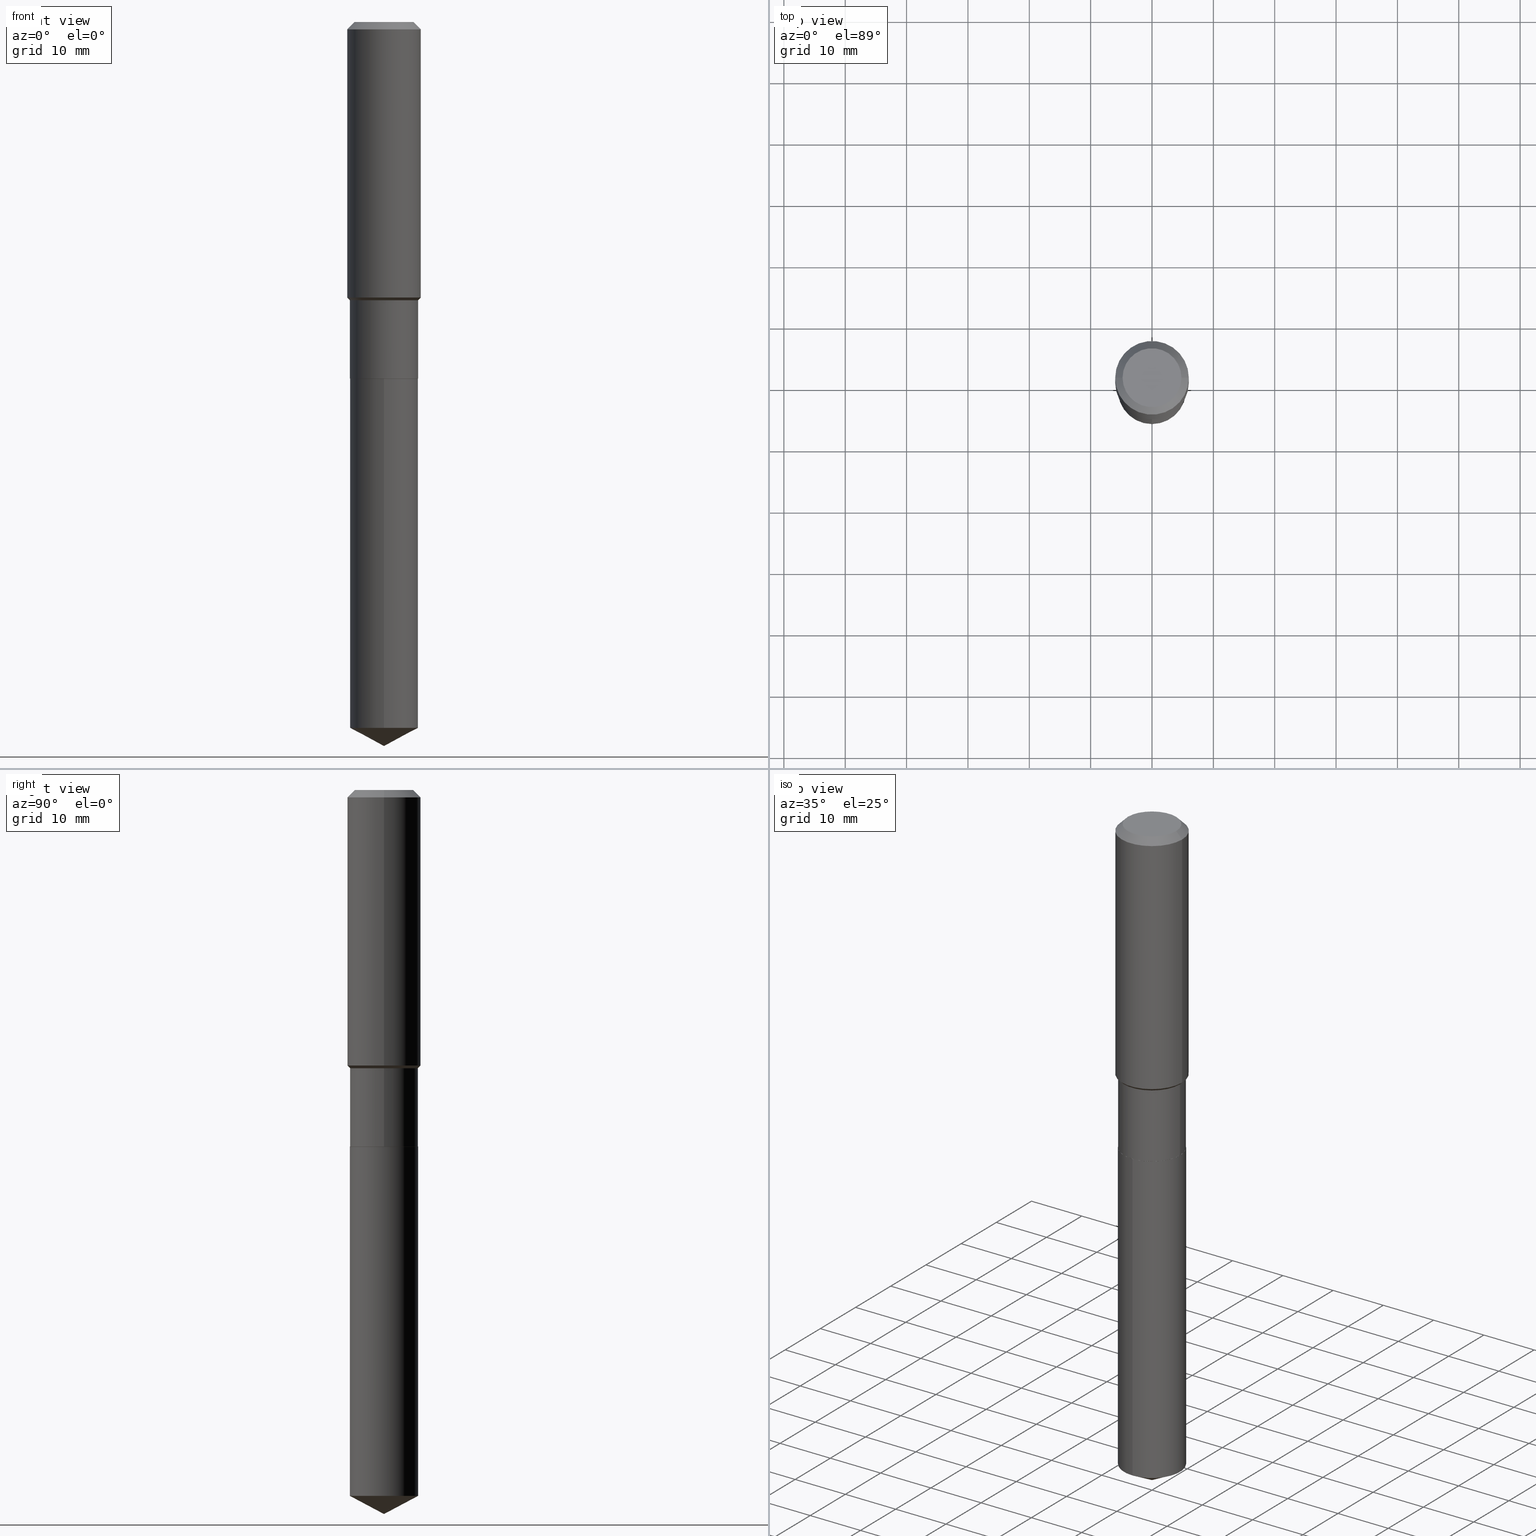
[diagram: canonical four-view strip — front | top / right | iso, engineering-drawing reading convention]
A machine part, canonical four-view strip (front | top / right | iso — engineering-drawing reading convention). The complete STEP part file that produces these views, byte-faithful:
ISO-10303-21;
HEADER;
FILE_DESCRIPTION (( 'STEP AP203' ),
    '1' );
FILE_NAME ('54825.STEP',
    '2024-04-24T16:01:53',
    ( '' ),
    ( '' ),
    'SwSTEP 2.0',
    'SolidWorks 2023',
    '' );
FILE_SCHEMA (( 'CONFIG_CONTROL_DESIGN' ));
ENDSEC;

DATA;
#1 = CARTESIAN_POINT ( 'NONE',  ( 1.136187168317618244E-28, -1.622110482110581493E-14, -4.645999999999999908 ) ) ;
#2 = ORIENTED_EDGE ( 'NONE', *, *, #13, .F. ) ;
#3 = EDGE_CURVE ( 'NONE', #397, #275, #413, .T. ) ;
#4 = DIRECTION ( 'NONE',  ( -6.982962677686265922E-15, -1.000000000000000000, 3.541896320645558897E-15 ) ) ;
#5 = PRODUCT_DEFINITION_FORMATION_WITH_SPECIFIED_SOURCE ( 'ANY', '', #87, .NOT_KNOWN. ) ;
#6 = CIRCLE ( 'NONE', #237, 0.2187499999999999167 ) ;
#7 = DIRECTION ( 'NONE',  ( -6.982962677686265133E-15, -1.000000000000000000, 2.497689594207326371E-15 ) ) ;
#8 = ORIENTED_EDGE ( 'NONE', *, *, #150, .T. ) ;
#9 = PERSON_AND_ORGANIZATION ( #203, #264 ) ;
#10 = DIRECTION ( 'NONE',  ( 1.000000000000000000, -6.982962677686262766E-15, 0.000000000000000000 ) ) ;
#11 = ORIENTED_EDGE ( 'NONE', *, *, #159, .F. ) ;
#12 = DIRECTION ( 'NONE',  ( -0.7071067811864267805, 7.493145998869918709E-15, 0.7071067811866682540 ) ) ;
#13 = EDGE_CURVE ( 'NONE', #204, #357, #67, .T. ) ;
#14 = ORIENTED_EDGE ( 'NONE', *, *, #36, .F. ) ;
#15 = VECTOR ( 'NONE', #461, 39.37007874015748143 ) ;
#16 = CARTESIAN_POINT ( 'NONE',  ( 5.596455362954686241E-29, -7.990255043942539745E-15, -2.288500000000000423 ) ) ;
#17 = ORIENTED_EDGE ( 'NONE', *, *, #343, .F. ) ;
#18 = DIRECTION ( 'NONE',  ( 2.445516523471432207E-29, -3.491413004973270552E-15, -1.000000000000000000 ) ) ;
#19 = ORIENTED_EDGE ( 'NONE', *, *, #456, .T. ) ;
#20 = APPROVAL ( #25, 'UNSPECIFIED' ) ;
#21 = EDGE_LOOP ( 'NONE', ( #48, #471, #53, #42 ) ) ;
#22 = CONICAL_SURFACE ( 'NONE', #437, 0.2182499999999999996, 0.7853981633972775267 ) ;
#23 = CIRCLE ( 'NONE', #282, 0.2362000000000002153 ) ;
#24 = CARTESIAN_POINT ( 'NONE',  ( 1.107731902311058001E-28, -1.581516993529237570E-14, -4.529688561824052329 ) ) ;
#25 = APPROVAL_STATUS ( 'not_yet_approved' ) ;
#26 = DIRECTION ( 'NONE',  ( -2.445516523471432488E-29, 3.491413004973270552E-15, 1.000000000000000000 ) ) ;
#27 = CARTESIAN_POINT ( 'NONE',  ( 5.596455362954686241E-29, -7.990255043942539745E-15, -2.288499999999999979 ) ) ;
#28 = EDGE_CURVE ( 'NONE', #239, #141, #420, .T. ) ;
#29 = AXIS2_PLACEMENT_3D ( 'NONE', #88, #34, #487 ) ;
#30 = DIRECTION ( 'NONE',  ( 1.000000000000000000, -6.982962677686266711E-15, 4.876176775795935793E-29 ) ) ;
#31 = VECTOR ( 'NONE', #190, 39.37007874015748143 ) ;
#32 = LINE ( 'NONE', #410, #314 ) ;
#33 = PERSON_AND_ORGANIZATION_ROLE ( 'design_supplier' ) ;
#34 = DIRECTION ( 'NONE',  ( -2.445516523471432488E-29, 3.491413004973270552E-15, 1.000000000000000000 ) ) ;
#35 = FACE_OUTER_BOUND ( 'NONE', #274, .T. ) ;
#36 = EDGE_CURVE ( 'NONE', #210, #397, #433, .T. ) ;
#37 = CARTESIAN_POINT ( 'NONE',  ( 4.366140006562942909E-29, -6.233690782370552646E-15, -1.785400000000000098 ) ) ;
#38 = ORIENTED_EDGE ( 'NONE', *, *, #13, .T. ) ;
#39 = DIRECTION ( 'NONE',  ( 1.000000000000000000, -6.982962677686266711E-15, 4.876176775795935793E-29 ) ) ;
#40 = CARTESIAN_POINT ( 'NONE',  ( 0.2182499999999999996, -9.514286648347568370E-15, -2.288500000000000423 ) ) ;
#41 = CIRCLE ( 'NONE', #465, 0.2187500000000000000 ) ;
#42 = ORIENTED_EDGE ( 'NONE', *, *, #456, .F. ) ;
#43 = FACE_OUTER_BOUND ( 'NONE', #352, .T. ) ;
#44 = CARTESIAN_POINT ( 'NONE',  ( 0.2187500000000000000, -9.516032389016987507E-15, -2.288000000000000256 ) ) ;
#45 = ADVANCED_FACE ( 'NONE', ( #212 ), #214, .T. ) ;
#46 =( NAMED_UNIT ( * ) SI_UNIT ( $, .STERADIAN. ) SOLID_ANGLE_UNIT ( ) );
#47 = DIRECTION ( 'NONE',  ( -2.445516523471432488E-29, 3.491413004973270552E-15, 1.000000000000000000 ) ) ;
#48 = ORIENTED_EDGE ( 'NONE', *, *, #77, .T. ) ;
#49 = CARTESIAN_POINT ( 'NONE',  ( 4.366140006562942909E-29, -6.233690782370552646E-15, -1.785400000000000098 ) ) ;
#50 = ORIENTED_EDGE ( 'NONE', *, *, #36, .T. ) ;
#51 = APPROVAL_DATE_TIME ( #345, #280 ) ;
#52 = DIRECTION ( 'NONE',  ( 1.000000000000000000, -6.982962677686266711E-15, 0.000000000000000000 ) ) ;
#53 = ORIENTED_EDGE ( 'NONE', *, *, #355, .F. ) ;
#54 = DATE_TIME_ROLE ( 'creation_date' ) ;
#55 = ADVANCED_FACE ( 'NONE', ( #148 ), #216, .T. ) ;
#56 = DIRECTION ( 'NONE',  ( -2.445468806185136597E-29, 3.491481338843145583E-15, 1.000000000000000000 ) ) ;
#57 = ORIENTED_EDGE ( 'NONE', *, *, #226, .F. ) ;
#58 = DIRECTION ( 'NONE',  ( 6.982962677686265922E-15, 1.000000000000000000, -3.491413004973270552E-15 ) ) ;
#59 = VERTEX_POINT ( 'NONE', #371 ) ;
#60 = CC_DESIGN_APPROVAL ( #144, ( #312 ) ) ;
#61 = AXIS2_PLACEMENT_3D ( 'NONE', #368, #143, #72 ) ;
#62 = AXIS2_PLACEMENT_3D ( 'NONE', #236, #384, #52 ) ;
#63 = ORIENTED_EDGE ( 'NONE', *, *, #296, .T. ) ;
#64 = ADVANCED_FACE ( 'NONE', ( #326 ), #286, .T. ) ;
#65 = ORIENTED_EDGE ( 'NONE', *, *, #351, .T. ) ;
#66 = ORIENTED_EDGE ( 'NONE', *, *, #355, .T. ) ;
#67 = CIRCLE ( 'NONE', #464, 0.1889600000000000168 ) ;
#68 = VECTOR ( 'NONE', #82, 39.37007874015748143 ) ;
#69 = ORIENTED_EDGE ( 'NONE', *, *, #211, .T. ) ;
#70 = CC_DESIGN_PERSON_AND_ORGANIZATION_ASSIGNMENT ( #334, #33, ( #5 ) ) ;
#71 = ORIENTED_EDGE ( 'NONE', *, *, #258, .F. ) ;
#72 = DIRECTION ( 'NONE',  ( 1.000000000000000000, -6.982962677686265922E-15, 0.000000000000000000 ) ) ;
#73 = CLOSED_SHELL ( 'NONE', ( #253, #131, #164, #45, #359 ) ) ;
#74 = CARTESIAN_POINT ( 'NONE',  ( 3.596165584200037068E-29, -1.085478385654307518E-14, -2.288500000000000423 ) ) ;
#75 = AXIS2_PLACEMENT_3D ( 'NONE', #430, #360, #168 ) ;
#76 = CARTESIAN_POINT ( 'NONE',  ( 0.2361999999999999933, -1.785387205520586782E-15, -0.04724000000000027483 ) ) ;
#77 = EDGE_CURVE ( 'NONE', #362, #91, #472, .T. ) ;
#78 = DIRECTION ( 'NONE',  ( 1.000000000000000000, -6.982962677686265922E-15, 0.000000000000000000 ) ) ;
#79 = ORIENTED_EDGE ( 'NONE', *, *, #333, .T. ) ;
#80 =( NAMED_UNIT ( * ) PLANE_ANGLE_UNIT ( ) SI_UNIT ( $, .RADIAN. ) );
#81 = DIRECTION ( 'NONE',  ( 2.438088387897960049E-29, -3.491481338843145188E-15, -1.000000000000000000 ) ) ;
#82 = DIRECTION ( 'NONE',  ( -0.7071067811865453523, 2.468850131082234184E-15, -0.7071067811865496822 ) ) ;
#83 = CARTESIAN_POINT ( 'NONE',  ( 1.155239464041865331E-30, -1.649375784469511612E-16, -0.04724000000000027483 ) ) ;
#84 = CONICAL_SURFACE ( 'NONE', #185, 74.04434902938358221, 1.082104136236486713 ) ;
#85 = AXIS2_PLACEMENT_3D ( 'NONE', #157, #332, #115 ) ;
#86 = LINE ( 'NONE', #195, #370 ) ;
#87 = PRODUCT ( '54825', '54825', '', ( #444 ) ) ;
#88 = CARTESIAN_POINT ( 'NONE',  ( 5.596455362954686241E-29, -7.990255043942539745E-15, -2.288499999999999979 ) ) ;
#89 = CARTESIAN_POINT ( 'NONE',  ( 0.1889600000000000168, -1.540873453589747738E-15, 3.855188123725863225E-18 ) ) ;
#90 = MANIFOLD_SOLID_BREP ( 'Body-Move/Copy2[1]', #73 ) ;
#91 = VERTEX_POINT ( 'NONE', #440 ) ;
#92 = AXIS2_PLACEMENT_3D ( 'NONE', #244, #424, #7 ) ;
#93 = ADVANCED_FACE ( 'NONE', ( #285 ), #22, .T. ) ;
#94 = ORIENTED_EDGE ( 'NONE', *, *, #289, .T. ) ;
#95 = APPROVAL_STATUS ( 'not_yet_approved' ) ;
#96 = CARTESIAN_POINT ( 'NONE',  ( 5.596455362954686241E-29, -7.990255043942539745E-15, -2.288499999999999979 ) ) ;
#97 = VERTEX_POINT ( 'NONE', #111 ) ;
#98 = DATE_AND_TIME ( #386, #431 ) ;
#99 = PLANE ( 'NONE',  #135 ) ;
#100 = ADVANCED_FACE ( 'NONE', ( #254 ), #170, .T. ) ;
#101 = ORIENTED_EDGE ( 'NONE', *, *, #28, .T. ) ;
#102 = LOCAL_TIME ( 12, 1, 53.00000000000000000, #145 ) ;
#103 = VECTOR ( 'NONE', #380, 39.37007874015748143 ) ;
#104 = DIRECTION ( 'NONE',  ( 1.000000000000000000, -6.982962677686264344E-15, 0.000000000000000000 ) ) ;
#105 = EDGE_LOOP ( 'NONE', ( #367, #17, #281, #385 ) ) ;
#106 = ORIENTED_EDGE ( 'NONE', *, *, #77, .F. ) ;
#107 = DIRECTION ( 'NONE',  ( -2.445468806185136597E-29, 3.491481338843145583E-15, 1.000000000000000000 ) ) ;
#108 = ADVANCED_FACE ( 'NONE', ( #255 ), #402, .F. ) ;
#109 = DATE_AND_TIME ( #215, #102 ) ;
#110 = ORIENTED_EDGE ( 'NONE', *, *, #138, .F. ) ;
#111 = CARTESIAN_POINT ( 'NONE',  ( 1.136186976804827439E-28, -1.622110482110581493E-14, -4.645999999999999908 ) ) ;
#112 = CARTESIAN_POINT ( 'NONE',  ( 1.136165136602890058E-28, -1.622141758522823527E-14, -4.645999999999999908 ) ) ;
#113 = DIRECTION ( 'NONE',  ( 1.000000000000000000, -6.982962677686264344E-15, 0.000000000000000000 ) ) ;
#114 = PRODUCT_RELATED_PRODUCT_CATEGORY ( 'detail', '', ( #87 ) ) ;
#115 = DIRECTION ( 'NONE',  ( 1.000000000000000000, 0.000000000000000000, 0.000000000000000000 ) ) ;
#116 = CARTESIAN_POINT ( 'NONE',  ( 5.596455362954686241E-29, -7.990255043942539745E-15, -2.288499999999999979 ) ) ;
#117 = CYLINDRICAL_SURFACE ( 'NONE', #398, 0.2187499999999999445 ) ;
#118 = DIRECTION ( 'NONE',  ( -2.445468806185136597E-29, 3.491481338843145583E-15, 1.000000000000000000 ) ) ;
#119 = DIRECTION ( 'NONE',  ( -2.445468806185136597E-29, 3.491481338843145583E-15, 1.000000000000000000 ) ) ;
#120 = DIRECTION ( 'NONE',  ( -2.445516523471432488E-29, 3.491413004973270552E-15, 1.000000000000000000 ) ) ;
#121 = ORIENTED_EDGE ( 'NONE', *, *, #123, .F. ) ;
#122 = CARTESIAN_POINT ( 'NONE',  ( -0.2187500000000000000, -5.556787808346616681E-15, -2.288000000000000256 ) ) ;
#123 = EDGE_CURVE ( 'NONE', #97, #91, #197, .T. ) ;
#124 = AXIS2_PLACEMENT_3D ( 'NONE', #83, #125, #342 ) ;
#125 = DIRECTION ( 'NONE',  ( 2.445468806185136597E-29, -3.491481338843145583E-15, -1.000000000000000000 ) ) ;
#126 = AXIS2_PLACEMENT_3D ( 'NONE', #394, #107, #30 ) ;
#127 = APPROVAL_ROLE ( '' ) ;
#128 = CARTESIAN_POINT ( 'NONE',  ( 4.366140006562942909E-29, -6.233690782370552646E-15, -1.785400000000000098 ) ) ;
#129 = EDGE_LOOP ( 'NONE', ( #249, #477, #69, #418 ) ) ;
#130 = CALENDAR_DATE ( 2024, 24, 4 ) ;
#131 = ADVANCED_FACE ( 'NONE', ( #267 ), #84, .T. ) ;
#132 = ORIENTED_EDGE ( 'NONE', *, *, #232, .F. ) ;
#133 = DIRECTION ( 'NONE',  ( -2.445468806185136597E-29, 3.491481338843145583E-15, 1.000000000000000000 ) ) ;
#134 = EDGE_LOOP ( 'NONE', ( #474, #460, #106 ) ) ;
#135 = AXIS2_PLACEMENT_3D ( 'NONE', #96, #18, #58 ) ;
#136 = FACE_OUTER_BOUND ( 'NONE', #176, .T. ) ;
#137 = ORIENTED_EDGE ( 'NONE', *, *, #343, .T. ) ;
#138 = EDGE_CURVE ( 'NONE', #59, #389, #287, .T. ) ;
#139 = ORIENTED_EDGE ( 'NONE', *, *, #434, .F. ) ;
#140 = EDGE_LOOP ( 'NONE', ( #121, #393, #207 ) ) ;
#141 = VERTEX_POINT ( 'NONE', #230 ) ;
#142 = DATE_AND_TIME ( #475, #486 ) ;
#143 = DIRECTION ( 'NONE',  ( -2.445468806185136597E-29, 3.491481338843145583E-15, 1.000000000000000000 ) ) ;
#144 = APPROVAL ( #270, 'UNSPECIFIED' ) ;
#145 = COORDINATED_UNIVERSAL_TIME_OFFSET ( 5, 0, .BEHIND. ) ;
#146 = CARTESIAN_POINT ( 'NONE',  ( 0.000000000000000000, 0.000000000000000000, 0.000000000000000000 ) ) ;
#147 = CONICAL_SURFACE ( 'NONE', #298, 0.2187499999999999167, 0.7853981633974531640 ) ;
#148 = FACE_OUTER_BOUND ( 'NONE', #242, .T. ) ;
#149 = CARTESIAN_POINT ( 'NONE',  ( 0.2187499999999999167, -7.761213868114422700E-15, -1.785400000000000098 ) ) ;
#150 = EDGE_CURVE ( 'NONE', #432, #218, #321, .T. ) ;
#151 = DIRECTION ( 'NONE',  ( -2.445468806185136597E-29, 3.491481338843145583E-15, 1.000000000000000000 ) ) ;
#152 = SECURITY_CLASSIFICATION_LEVEL ( 'unclassified' ) ;
#153 = DIRECTION ( 'NONE',  ( 1.000000000000000000, -6.982962677686265922E-15, 4.876176775795935793E-29 ) ) ;
#154 = CARTESIAN_POINT ( 'NONE',  ( -1.527523085743814439E-15, -0.2187500000000079659, -2.288499999999999535 ) ) ;
#155 = CONICAL_SURFACE ( 'NONE', #177, 0.2361999999999999933, 0.7853981633974452814 ) ;
#156 = CARTESIAN_POINT ( 'NONE',  ( 1.155239464041865331E-30, -1.649375784469511612E-16, -0.04724000000000027483 ) ) ;
#157 = CARTESIAN_POINT ( 'NONE',  ( 0.000000000000000000, 0.000000000000000000, 0.000000000000000000 ) ) ;
#158 = DIRECTION ( 'NONE',  ( -6.982962677686265922E-15, -1.000000000000000000, 3.541896320645558897E-15 ) ) ;
#159 = EDGE_CURVE ( 'NONE', #224, #141, #373, .T. ) ;
#160 = CARTESIAN_POINT ( 'NONE',  ( -0.2182499999999999996, -6.436846295972010286E-15, -2.288500000000000423 ) ) ;
#161 = COORDINATED_UNIVERSAL_TIME_OFFSET ( 5, 0, .BEHIND. ) ;
#162 = CARTESIAN_POINT ( 'NONE',  ( -0.2362000000000001043, 1.678301941865357380E-15, -1.161852468318209317E-29 ) ) ;
#163 = APPROVAL_PERSON_ORGANIZATION ( #349, #144, #417 ) ;
#164 = ADVANCED_FACE ( 'NONE', ( #223 ), #220, .T. ) ;
#165 = FACE_OUTER_BOUND ( 'NONE', #169, .T. ) ;
#166 = PRODUCT_DEFINITION_SHAPE ( 'NONE', 'NONE',  #312 ) ;
#167 = ORIENTED_EDGE ( 'NONE', *, *, #28, .F. ) ;
#168 = DIRECTION ( 'NONE',  ( -6.982962677686265133E-15, -1.000000000000000000, 3.746534391310989557E-15 ) ) ;
#169 = EDGE_LOOP ( 'NONE', ( #313, #354, #399, #245 ) ) ;
#170 = CONICAL_SURFACE ( 'NONE', #392, 0.2182499999999999996, 0.7853981633972775267 ) ;
#171 = CIRCLE ( 'NONE', #250, 0.2361999999999999933 ) ;
#172 = ORIENTED_EDGE ( 'NONE', *, *, #138, .T. ) ;
#173 = ADVANCED_FACE ( 'NONE', ( #378 ), #344, .F. ) ;
#174 = DIRECTION ( 'NONE',  ( -2.445468806185136597E-29, 3.491481338843145583E-15, 1.000000000000000000 ) ) ;
#175 = EDGE_LOOP ( 'NONE', ( #2, #310, #101, #139 ) ) ;
#176 = EDGE_LOOP ( 'NONE', ( #66, #172 ) ) ;
#177 = AXIS2_PLACEMENT_3D ( 'NONE', #156, #299, #457 ) ;
#178 = ADVANCED_FACE ( 'NONE', ( #191 ), #155, .T. ) ;
#179 = DIRECTION ( 'NONE',  ( -6.982962677686265133E-15, -1.000000000000000000, 2.497689594207326371E-15 ) ) ;
#180 = APPROVAL_ROLE ( '' ) ;
#181 = DIRECTION ( 'NONE',  ( -2.445468806185136877E-29, 3.491481338843145188E-15, 1.000000000000000000 ) ) ;
#182 = DIRECTION ( 'NONE',  ( 1.000000000000000000, -6.982962677686266711E-15, 0.000000000000000000 ) ) ;
#183 = LOCAL_TIME ( 12, 1, 53.00000000000000000, #161 ) ;
#184 = LOCAL_TIME ( 12, 1, 53.00000000000000000, #305 ) ;
#185 = AXIS2_PLACEMENT_3D ( 'NONE', #295, #490, #158 ) ;
#186 = CIRCLE ( 'NONE', #75, 0.2187500000000000000 ) ;
#187 = CARTESIAN_POINT ( 'NONE',  ( 1.155239464041865331E-30, -1.649375784469511612E-16, -0.04724000000000027483 ) ) ;
#188 = DIRECTION ( 'NONE',  ( -2.445516523471432488E-29, 3.491413004973270552E-15, 1.000000000000000000 ) ) ;
#189 = DIRECTION ( 'NONE',  ( -2.445468806185136597E-29, 3.491481338843145583E-15, 1.000000000000000000 ) ) ;
#190 = DIRECTION ( 'NONE',  ( 0.7071067811865453523, -7.319954787623248157E-15, -0.7071067811865496822 ) ) ;
#191 = FACE_OUTER_BOUND ( 'NONE', #105, .T. ) ;
#192 = AXIS2_PLACEMENT_3D ( 'NONE', #338, #47, #4 ) ;
#193 = LINE ( 'NONE', #341, #406 ) ;
#194 = CC_DESIGN_PERSON_AND_ORGANIZATION_ASSIGNMENT ( #294, #358, ( #327 ) ) ;
#195 = CARTESIAN_POINT ( 'NONE',  ( 0.2187499999999999167, -7.761213868114422700E-15, -1.785400000000000098 ) ) ;
#196 = FACE_OUTER_BOUND ( 'NONE', #175, .T. ) ;
#197 = LINE ( 'NONE', #1, #455 ) ;
#198 = PERSON_AND_ORGANIZATION ( #203, #264 ) ;
#199 = ADVANCED_FACE ( 'NONE', ( #407 ), #147, .T. ) ;
#200 = CARTESIAN_POINT ( 'NONE',  ( 0.2362000000000001043, -1.649375784469496920E-15, 1.151752954443000508E-29 ) ) ;
#201 = AXIS2_PLACEMENT_3D ( 'NONE', #146, #366, #290 ) ;
#202 = ORIENTED_EDGE ( 'NONE', *, *, #451, .F. ) ;
#203 = PERSON ( 'UNSPECIFIED', 'UNSPECIFIED', 'UNSPECIFIED', ('UNSPECIFIED'), ('UNSPECIFIED'), ('UNSPECIFIED') ) ;
#204 = VERTEX_POINT ( 'NONE', #89 ) ;
#205 = CONICAL_SURFACE ( 'NONE', #266, 0.2187499999999999167, 0.7853981633974531640 ) ;
#206 = APPLICATION_CONTEXT ( 'configuration controlled 3d designs of mechanical parts and assemblies' ) ;
#207 = ORIENTED_EDGE ( 'NONE', *, *, #296, .F. ) ;
#208 = CARTESIAN_POINT ( 'NONE',  ( -0.2182499999999999996, -6.439495523146121487E-15, -2.288500000000000423 ) ) ;
#209 = ORIENTED_EDGE ( 'NONE', *, *, #232, .T. ) ;
#210 = VERTEX_POINT ( 'NONE', #44 ) ;
#211 = EDGE_CURVE ( 'NONE', #432, #210, #269, .T. ) ;
#212 = FACE_OUTER_BOUND ( 'NONE', #234, .T. ) ;
#213 = CIRCLE ( 'NONE', #330, 0.2182499999999999996 ) ;
#214 = CYLINDRICAL_SURFACE ( 'NONE', #235, 0.2187500000000000000 ) ;
#215 = CALENDAR_DATE ( 2024, 24, 4 ) ;
#216 = CYLINDRICAL_SURFACE ( 'NONE', #201, 0.2187499999999999445 ) ;
#217 = CC_DESIGN_PERSON_AND_ORGANIZATION_ASSIGNMENT ( #390, #419, ( #312 ) ) ;
#218 = VERTEX_POINT ( 'NONE', #160 ) ;
#219 = CC_DESIGN_APPROVAL ( #20, ( #327 ) ) ;
#220 = CONICAL_SURFACE ( 'NONE', #192, 74.04434902938358221, 1.082104136236486713 ) ;
#221 = ORIENTED_EDGE ( 'NONE', *, *, #3, .F. ) ;
#222 = CYLINDRICAL_SURFACE ( 'NONE', #308, 0.2362000000000001043 ) ;
#223 = FACE_OUTER_BOUND ( 'NONE', #140, .T. ) ;
#224 = VERTEX_POINT ( 'NONE', #452 ) ;
#225 = LENGTH_MEASURE_WITH_UNIT ( LENGTH_MEASURE( 0.02539999999999999897 ), #489 );
#226 = EDGE_CURVE ( 'NONE', #275, #397, #6, .T. ) ;
#227 = DIRECTION ( 'NONE',  ( -2.445468806185136877E-29, 3.491481338843145188E-15, 1.000000000000000000 ) ) ;
#228 = DIRECTION ( 'NONE',  ( -2.445468806185136597E-29, 3.491481338843145583E-15, 1.000000000000000000 ) ) ;
#229 = AXIS2_PLACEMENT_3D ( 'NONE', #74, #375, #153 ) ;
#230 = CARTESIAN_POINT ( 'NONE',  ( -0.2361999999999999933, -1.490549063861987191E-15, -0.04724000000000027483 ) ) ;
#231 = DIRECTION ( 'NONE',  ( 6.273719981627766076E-15, 0.8829475928589297640, 0.4694715627858855878 ) ) ;
#232 = EDGE_CURVE ( 'NONE', #422, #275, #416, .T. ) ;
#233 = CARTESIAN_POINT ( 'NONE',  ( -0.2187499999999999445, 1.554312234475218762E-15, -1.076017050993260482E-29 ) ) ;
#234 = EDGE_LOOP ( 'NONE', ( #71, #63, #19, #110 ) ) ;
#235 = AXIS2_PLACEMENT_3D ( 'NONE', #27, #248, #323 ) ;
#236 = CARTESIAN_POINT ( 'NONE',  ( 4.323466575895011537E-29, -6.172764433007738621E-15, -1.767949999999999910 ) ) ;
#237 = AXIS2_PLACEMENT_3D ( 'NONE', #37, #118, #78 ) ;
#238 = DIRECTION ( 'NONE',  ( -2.445468806185136597E-29, 3.491481338843145583E-15, 1.000000000000000000 ) ) ;
#239 = VERTEX_POINT ( 'NONE', #484 ) ;
#240 = CC_DESIGN_PERSON_AND_ORGANIZATION_ASSIGNMENT ( #426, #423, ( #87 ) ) ;
#241 = DIRECTION ( 'NONE',  ( 1.000000000000000000, -6.982962677686266711E-15, 4.876185090822587894E-29 ) ) ;
#242 = EDGE_LOOP ( 'NONE', ( #247, #209, #221, #14 ) ) ;
#243 = CC_DESIGN_APPROVAL ( #280, ( #5 ) ) ;
#244 = CARTESIAN_POINT ( 'NONE',  ( 1.107731902311058001E-28, -1.581516993529237570E-14, -4.529688561824052329 ) ) ;
#245 = ORIENTED_EDGE ( 'NONE', *, *, #439, .F. ) ;
#246 = VECTOR ( 'NONE', #227, 39.37007874015748143 ) ;
#247 = ORIENTED_EDGE ( 'NONE', *, *, #451, .T. ) ;
#248 = DIRECTION ( 'NONE',  ( -2.445516523471432488E-29, 3.491413004973270552E-15, 1.000000000000000000 ) ) ;
#249 = ORIENTED_EDGE ( 'NONE', *, *, #351, .F. ) ;
#250 = AXIS2_PLACEMENT_3D ( 'NONE', #408, #119, #404 ) ;
#251 = APPROVAL_DATE_TIME ( #109, #20 ) ;
#252 = EDGE_LOOP ( 'NONE', ( #137, #38 ) ) ;
#253 = ADVANCED_FACE ( 'NONE', ( #259 ), #446, .T. ) ;
#254 = FACE_OUTER_BOUND ( 'NONE', #129, .T. ) ;
#255 = FACE_OUTER_BOUND ( 'NONE', #317, .T. ) ;
#256 = DIRECTION ( 'NONE',  ( -2.445516523471432488E-29, 3.491413004973270552E-15, 1.000000000000000000 ) ) ;
#257 = DIMENSIONAL_EXPONENTS ( 1.000000000000000000, 0.000000000000000000, 0.000000000000000000, 0.000000000000000000, 0.000000000000000000, 0.000000000000000000, 0.000000000000000000 ) ;
#258 = EDGE_CURVE ( 'NONE', #91, #59, #193, .T. ) ;
#259 = FACE_OUTER_BOUND ( 'NONE', #21, .T. ) ;
#260 = DIRECTION ( 'NONE',  ( 1.000000000000000000, -6.982962677686262766E-15, 0.000000000000000000 ) ) ;
#261 = ADVANCED_FACE ( 'NONE', ( #196 ), #391, .T. ) ;
#262 = DIRECTION ( 'NONE',  ( 1.000000000000000000, -6.982962677686264344E-15, 0.000000000000000000 ) ) ;
#263 = LINE ( 'NONE', #379, #68 ) ;
#264 = ORGANIZATION ( 'UNSPECIFIED', 'UNSPECIFIED', '' ) ;
#265 = CC_DESIGN_PERSON_AND_ORGANIZATION_ASSIGNMENT ( #9, #483, ( #5 ) ) ;
#266 = AXIS2_PLACEMENT_3D ( 'NONE', #49, #238, #279 ) ;
#267 = FACE_OUTER_BOUND ( 'NONE', #134, .T. ) ;
#268 = CALENDAR_DATE ( 2024, 24, 4 ) ;
#269 = LINE ( 'NONE', #40, #421 ) ;
#270 = APPROVAL_STATUS ( 'not_yet_approved' ) ;
#271 = DIRECTION ( 'NONE',  ( 1.000000000000000000, -6.982962677686266711E-15, 0.000000000000000000 ) ) ;
#272 = ORIENTED_EDGE ( 'NONE', *, *, #226, .T. ) ;
#273 = AXIS2_PLACEMENT_3D ( 'NONE', #277, #388, #10 ) ;
#274 = EDGE_LOOP ( 'NONE', ( #132, #79, #50, #57 ) ) ;
#275 = VERTEX_POINT ( 'NONE', #304 ) ;
#276 = COORDINATED_UNIVERSAL_TIME_OFFSET ( 5, 0, .BEHIND. ) ;
#277 = CARTESIAN_POINT ( 'NONE',  ( 5.595232628551593439E-29, -7.988509303273117453E-15, -2.288000000000000256 ) ) ;
#278 = EDGE_LOOP ( 'NONE', ( #8, #65, #202, #361 ) ) ;
#279 = DIRECTION ( 'NONE',  ( 1.000000000000000000, -6.982962677686265922E-15, 0.000000000000000000 ) ) ;
#280 = APPROVAL ( #95, 'UNSPECIFIED' ) ;
#281 = ORIENTED_EDGE ( 'NONE', *, *, #434, .T. ) ;
#282 = AXIS2_PLACEMENT_3D ( 'NONE', #459, #133, #271 ) ;
#283 = ORIENTED_EDGE ( 'NONE', *, *, #150, .F. ) ;
#284 = PERSON_AND_ORGANIZATION ( #203, #264 ) ;
#285 = FACE_OUTER_BOUND ( 'NONE', #278, .T. ) ;
#286 = CYLINDRICAL_SURFACE ( 'NONE', #126, 0.2362000000000001043 ) ;
#287 = CIRCLE ( 'NONE', #29, 0.2187500000000000000 ) ;
#288 = CIRCLE ( 'NONE', #273, 0.2187500000000000000 ) ;
#289 = EDGE_CURVE ( 'NONE', #387, #239, #453, .T. ) ;
#290 = DIRECTION ( 'NONE',  ( 1.000000000000000000, -6.982962677686266711E-15, 4.876176775795935232E-29 ) ) ;
#291 = DIRECTION ( 'NONE',  ( -6.165590087286835240E-15, -0.8829475928589264333, 0.4694715627858918050 ) ) ;
#292 = DIRECTION ( 'NONE',  ( -2.445468806185136597E-29, 3.491481338843145583E-15, 1.000000000000000000 ) ) ;
#293 = APPLICATION_PROTOCOL_DEFINITION ( 'international standard', 'config_control_design', 1994, #206 ) ;
#294 = PERSON_AND_ORGANIZATION ( #203, #264 ) ;
#295 = CARTESIAN_POINT ( 'NONE',  ( -8.491841752238788673E-28, 1.212359437170404851E-13, 34.72407874015748064 ) ) ;
#296 = EDGE_CURVE ( 'NONE', #91, #362, #414, .T. ) ;
#297 = DIRECTION ( 'NONE',  ( -0.7071067811865509034, 7.493145998870366782E-15, 0.7071067811865440200 ) ) ;
#298 = AXIS2_PLACEMENT_3D ( 'NONE', #128, #412, #335 ) ;
#299 = DIRECTION ( 'NONE',  ( 2.445468806185136597E-29, -3.491481338843145583E-15, -1.000000000000000000 ) ) ;
#300 = DIRECTION ( 'NONE',  ( 1.000000000000000000, -6.982962677686266711E-15, 4.876176775795935232E-29 ) ) ;
#301 = CARTESIAN_POINT ( 'NONE',  ( -4.713871149261273121E-47, 6.730158695841826722E-33, 1.927594061857931128E-18 ) ) ;
#302 = CARTESIAN_POINT ( 'NONE',  ( 5.595232628551593439E-29, -7.988509303273117453E-15, -2.288000000000000256 ) ) ;
#303 = ADVANCED_FACE ( 'NONE', ( #165 ), #205, .T. ) ;
#304 = CARTESIAN_POINT ( 'NONE',  ( -0.2187499999999999167, -5.556787808346616681E-15, -1.785400000000000098 ) ) ;
#305 = COORDINATED_UNIVERSAL_TIME_OFFSET ( 5, 0, .BEHIND. ) ;
#306 = APPROVAL_PERSON_ORGANIZATION ( #284, #20, #180 ) ;
#307 = AXIS2_PLACEMENT_3D ( 'NONE', #415, #189, #262 ) ;
#308 = AXIS2_PLACEMENT_3D ( 'NONE', #372, #376, #39 ) ;
#309 = DIRECTION ( 'NONE',  ( -1.000000000000000000, 6.982962677686265922E-15, -4.876176775795935793E-29 ) ) ;
#310 = ORIENTED_EDGE ( 'NONE', *, *, #401, .T. ) ;
#311 = CARTESIAN_POINT ( 'NONE',  ( -9.427742298522546243E-47, 1.346031739168365344E-32, 3.855188123715862256E-18 ) ) ;
#312 = PRODUCT_DEFINITION ( 'UNKNOWN', '', #5, #468 ) ;
#313 = ORIENTED_EDGE ( 'NONE', *, *, #3, .T. ) ;
#314 = VECTOR ( 'NONE', #297, 39.37007874015748854 ) ;
#315 = EDGE_LOOP ( 'NONE', ( #476, #272, #429, #470 ) ) ;
#316 = CARTESIAN_POINT ( 'NONE',  ( 0.2362000000000002153, -7.822140217477236724E-15, -1.767949999999999910 ) ) ;
#317 = EDGE_LOOP ( 'NONE', ( #283, #320 ) ) ;
#318 = EDGE_CURVE ( 'NONE', #387, #224, #23, .T. ) ;
#319 = AXIS2_PLACEMENT_3D ( 'NONE', #301, #81, #309 ) ;
#320 = ORIENTED_EDGE ( 'NONE', *, *, #369, .F. ) ;
#321 = CIRCLE ( 'NONE', #307, 0.2182499999999999996 ) ;
#322 = CARTESIAN_POINT ( 'NONE',  ( 0.2187499999999999445, -1.527523085743870449E-15, 1.066663669705360604E-29 ) ) ;
#323 = DIRECTION ( 'NONE',  ( -6.982962677686265133E-15, -1.000000000000000000, 3.746534391310989557E-15 ) ) ;
#324 = EDGE_CURVE ( 'NONE', #224, #387, #325, .T. ) ;
#325 = CIRCLE ( 'NONE', #62, 0.2362000000000002153 ) ;
#326 = FACE_OUTER_BOUND ( 'NONE', #374, .T. ) ;
#327 = SECURITY_CLASSIFICATION ( '', '', #152 ) ;
#328 = AXIS2_PLACEMENT_3D ( 'NONE', #187, #151, #182 ) ;
#329 = LINE ( 'NONE', #76, #31 ) ;
#330 = AXIS2_PLACEMENT_3D ( 'NONE', #16, #174, #104 ) ;
#331 = CARTESIAN_POINT ( 'NONE',  ( 5.596455362954686241E-29, -7.990255043942539745E-15, -2.288500000000000423 ) ) ;
#332 = DIRECTION ( 'NONE',  ( 0.000000000000000000, 0.000000000000000000, 1.000000000000000000 ) ) ;
#333 = EDGE_CURVE ( 'NONE', #422, #210, #288, .T. ) ;
#334 = PERSON_AND_ORGANIZATION ( #203, #264 ) ;
#335 = DIRECTION ( 'NONE',  ( 1.000000000000000000, -6.982962677686265922E-15, 0.000000000000000000 ) ) ;
#336 = CARTESIAN_POINT ( 'NONE',  ( 0.2182499999999999996, -9.514286648347568370E-15, -2.288500000000000423 ) ) ;
#337 = ADVANCED_BREP_SHAPE_REPRESENTATION ( '54825', ( #90, #405, #85 ), #377 ) ;
#338 = CARTESIAN_POINT ( 'NONE',  ( -8.491841752238788673E-28, 1.212359437170404851E-13, 34.72407874015748064 ) ) ;
#339 = DIRECTION ( 'NONE',  ( 0.7071067811865509034, -2.468850131082292559E-15, 0.7071067811865440200 ) ) ;
#340 = AXIS2_PLACEMENT_3D ( 'NONE', #311, #56, #241 ) ;
#341 = CARTESIAN_POINT ( 'NONE',  ( 1.554312234475274969E-15, 0.2187499999999920064, -2.288500000000000867 ) ) ;
#342 = DIRECTION ( 'NONE',  ( -1.000000000000000000, 6.982962677686266711E-15, 0.000000000000000000 ) ) ;
#343 = EDGE_CURVE ( 'NONE', #357, #204, #383, .T. ) ;
#344 = PLANE ( 'NONE',  #319 ) ;
#345 = DATE_AND_TIME ( #268, #184 ) ;
#346 = CLOSED_SHELL ( 'NONE', ( #93, #261, #64, #303, #55, #436, #199, #411, #178, #173, #108, #100 ) ) ;
#347 = VECTOR ( 'NONE', #188, 39.37007874015748143 ) ;
#348 = ORIENTED_EDGE ( 'NONE', *, *, #324, .T. ) ;
#349 = PERSON_AND_ORGANIZATION ( #203, #264 ) ;
#350 = APPLICATION_CONTEXT ( 'configuration controlled 3d designs of mechanical parts and assemblies' ) ;
#351 = EDGE_CURVE ( 'NONE', #218, #422, #353, .T. ) ;
#352 = EDGE_LOOP ( 'NONE', ( #11, #348, #94, #425 ) ) ;
#353 = LINE ( 'NONE', #208, #364 ) ;
#354 = ORIENTED_EDGE ( 'NONE', *, *, #473, .T. ) ;
#355 = EDGE_CURVE ( 'NONE', #389, #59, #186, .T. ) ;
#356 = CARTESIAN_POINT ( 'NONE',  ( -1.527523085743759811E-15, -0.2187500000000157929, -4.529688561824051440 ) ) ;
#357 = VERTEX_POINT ( 'NONE', #428 ) ;
#358 = PERSON_AND_ORGANIZATION_ROLE ( 'classification_officer' ) ;
#359 = ADVANCED_FACE ( 'NONE', ( #136 ), #99, .F. ) ;
#360 = DIRECTION ( 'NONE',  ( -2.445516523471432488E-29, 3.491413004973270552E-15, 1.000000000000000000 ) ) ;
#361 = ORIENTED_EDGE ( 'NONE', *, *, #211, .F. ) ;
#362 = VERTEX_POINT ( 'NONE', #356 ) ;
#363 = ORIENTED_EDGE ( 'NONE', *, *, #318, .T. ) ;
#364 = VECTOR ( 'NONE', #12, 39.37007874015748143 ) ;
#365 = CC_DESIGN_DATE_AND_TIME_ASSIGNMENT ( #381, #54, ( #312 ) ) ;
#366 = DIRECTION ( 'NONE',  ( -2.445468806185136597E-29, 3.491481338843145583E-15, 1.000000000000000000 ) ) ;
#367 = ORIENTED_EDGE ( 'NONE', *, *, #401, .F. ) ;
#368 = CARTESIAN_POINT ( 'NONE',  ( 4.366140006562942909E-29, -6.233690782370552646E-15, -1.785400000000000098 ) ) ;
#369 = EDGE_CURVE ( 'NONE', #218, #432, #213, .T. ) ;
#370 = VECTOR ( 'NONE', #339, 39.37007874015748854 ) ;
#371 = CARTESIAN_POINT ( 'NONE',  ( 1.554312234475330189E-15, 0.2187499999999920064, -2.288500000000000867 ) ) ;
#372 = CARTESIAN_POINT ( 'NONE',  ( 0.000000000000000000, 0.000000000000000000, 0.000000000000000000 ) ) ;
#373 = LINE ( 'NONE', #162, #103 ) ;
#374 = EDGE_LOOP ( 'NONE', ( #363, #466, #167, #462 ) ) ;
#375 = DIRECTION ( 'NONE',  ( -2.438088387897960049E-29, 3.491481338843145188E-15, 1.000000000000000000 ) ) ;
#376 = DIRECTION ( 'NONE',  ( -2.445468806185136597E-29, 3.491481338843145583E-15, 1.000000000000000000 ) ) ;
#377 =( GEOMETRIC_REPRESENTATION_CONTEXT ( 3 ) GLOBAL_UNCERTAINTY_ASSIGNED_CONTEXT ( ( #443 ) ) GLOBAL_UNIT_ASSIGNED_CONTEXT ( ( #441, #80, #46 ) ) REPRESENTATION_CONTEXT ( 'NONE', 'WORKASPACE' ) );
#378 = FACE_OUTER_BOUND ( 'NONE', #252, .T. ) ;
#379 = CARTESIAN_POINT ( 'NONE',  ( -0.2361999999999999933, 1.484438206022545019E-15, -0.04724000000000027483 ) ) ;
#380 = DIRECTION ( 'NONE',  ( -2.445468806185136877E-29, 3.491481338843145188E-15, 1.000000000000000000 ) ) ;
#381 = DATE_AND_TIME ( #130, #183 ) ;
#382 = CC_DESIGN_DATE_AND_TIME_ASSIGNMENT ( #142, #396, ( #327 ) ) ;
#383 = CIRCLE ( 'NONE', #340, 0.1889600000000000168 ) ;
#384 = DIRECTION ( 'NONE',  ( -2.445468806185136597E-29, 3.491481338843145583E-15, 1.000000000000000000 ) ) ;
#385 = ORIENTED_EDGE ( 'NONE', *, *, #395, .T. ) ;
#386 = CALENDAR_DATE ( 2024, 24, 4 ) ;
#387 = VERTEX_POINT ( 'NONE', #316 ) ;
#388 = DIRECTION ( 'NONE',  ( -2.445468806185136597E-29, 3.491481338843145583E-15, 1.000000000000000000 ) ) ;
#389 = VERTEX_POINT ( 'NONE', #469 ) ;
#390 = PERSON_AND_ORGANIZATION ( #203, #264 ) ;
#391 = CONICAL_SURFACE ( 'NONE', #124, 0.2361999999999999933, 0.7853981633974452814 ) ;
#392 = AXIS2_PLACEMENT_3D ( 'NONE', #331, #442, #113 ) ;
#393 = ORIENTED_EDGE ( 'NONE', *, *, #488, .T. ) ;
#394 = CARTESIAN_POINT ( 'NONE',  ( 0.000000000000000000, 0.000000000000000000, 0.000000000000000000 ) ) ;
#395 = EDGE_CURVE ( 'NONE', #141, #239, #171, .T. ) ;
#396 = DATE_TIME_ROLE ( 'classification_date' ) ;
#397 = VERTEX_POINT ( 'NONE', #149 ) ;
#398 = AXIS2_PLACEMENT_3D ( 'NONE', #485, #228, #300 ) ;
#399 = ORIENTED_EDGE ( 'NONE', *, *, #318, .F. ) ;
#400 = DIRECTION ( 'NONE',  ( 1.000000000000000000, -6.982962677686266711E-15, 4.876185090822587894E-29 ) ) ;
#401 = EDGE_CURVE ( 'NONE', #204, #239, #329, .T. ) ;
#402 = PLANE ( 'NONE',  #229 ) ;
#403 = VECTOR ( 'NONE', #181, 39.37007874015748143 ) ;
#404 = DIRECTION ( 'NONE',  ( 1.000000000000000000, -6.982962677686266711E-15, 0.000000000000000000 ) ) ;
#405 = MANIFOLD_SOLID_BREP ( 'Body-Move/Copy2[2]', #346 ) ;
#406 = VECTOR ( 'NONE', #120, 39.37007874015748143 ) ;
#407 = FACE_OUTER_BOUND ( 'NONE', #315, .T. ) ;
#408 = CARTESIAN_POINT ( 'NONE',  ( 1.155239464041865331E-30, -1.649375784469511612E-16, -0.04724000000000027483 ) ) ;
#409 = DIRECTION ( 'NONE',  ( -6.982962677686265133E-15, -1.000000000000000000, 3.746534391310989557E-15 ) ) ;
#410 = CARTESIAN_POINT ( 'NONE',  ( -0.2187499999999999167, -4.679378547895333489E-15, -1.785400000000000098 ) ) ;
#411 = ADVANCED_FACE ( 'NONE', ( #43 ), #222, .T. ) ;
#412 = DIRECTION ( 'NONE',  ( -2.445468806185136597E-29, 3.491481338843145583E-15, 1.000000000000000000 ) ) ;
#413 = CIRCLE ( 'NONE', #61, 0.2187499999999999167 ) ;
#414 = CIRCLE ( 'NONE', #92, 0.2187500000000000000 ) ;
#415 = CARTESIAN_POINT ( 'NONE',  ( 5.596455362954686241E-29, -7.990255043942539745E-15, -2.288500000000000423 ) ) ;
#416 = LINE ( 'NONE', #233, #246 ) ;
#417 = APPROVAL_ROLE ( '' ) ;
#418 = ORIENTED_EDGE ( 'NONE', *, *, #333, .F. ) ;
#419 = PERSON_AND_ORGANIZATION_ROLE ( 'creator' ) ;
#420 = CIRCLE ( 'NONE', #328, 0.2361999999999999933 ) ;
#421 = VECTOR ( 'NONE', #449, 39.37007874015748143 ) ;
#422 = VERTEX_POINT ( 'NONE', #122 ) ;
#423 = PERSON_AND_ORGANIZATION_ROLE ( 'design_owner' ) ;
#424 = DIRECTION ( 'NONE',  ( -2.445516523471432488E-29, 3.491413004973270552E-15, 1.000000000000000000 ) ) ;
#425 = ORIENTED_EDGE ( 'NONE', *, *, #395, .F. ) ;
#426 = PERSON_AND_ORGANIZATION ( #203, #264 ) ;
#427 = SHAPE_DEFINITION_REPRESENTATION ( #166, #337 ) ;
#428 = CARTESIAN_POINT ( 'NONE',  ( -0.1889600000000000168, 1.401969416799070942E-15, 3.855188123706346622E-18 ) ) ;
#429 = ORIENTED_EDGE ( 'NONE', *, *, #439, .T. ) ;
#430 = CARTESIAN_POINT ( 'NONE',  ( 5.596455362954686241E-29, -7.990255043942539745E-15, -2.288499999999999979 ) ) ;
#431 = LOCAL_TIME ( 12, 1, 53.00000000000000000, #276 ) ;
#432 = VERTEX_POINT ( 'NONE', #336 ) ;
#433 = LINE ( 'NONE', #322, #403 ) ;
#434 = EDGE_CURVE ( 'NONE', #357, #141, #263, .T. ) ;
#435 = CARTESIAN_POINT ( 'NONE',  ( 5.596455362954686241E-29, -7.990255043942539745E-15, -2.288500000000000423 ) ) ;
#436 = ADVANCED_FACE ( 'NONE', ( #35 ), #117, .T. ) ;
#437 = AXIS2_PLACEMENT_3D ( 'NONE', #435, #438, #479 ) ;
#438 = DIRECTION ( 'NONE',  ( -2.445468806185136597E-29, 3.491481338843145583E-15, 1.000000000000000000 ) ) ;
#439 = EDGE_CURVE ( 'NONE', #397, #387, #86, .T. ) ;
#440 = CARTESIAN_POINT ( 'NONE',  ( 1.554312234475329992E-15, 0.2187499999999842071, -4.529688561824053217 ) ) ;
#441 =( CONVERSION_BASED_UNIT ( 'INCH', #225 ) LENGTH_UNIT ( ) NAMED_UNIT ( #257 ) );
#442 = DIRECTION ( 'NONE',  ( -2.445468806185136597E-29, 3.491481338843145583E-15, 1.000000000000000000 ) ) ;
#443 = UNCERTAINTY_MEASURE_WITH_UNIT (LENGTH_MEASURE( 1.000000000000000082E-05 ), #441, 'distance_accuracy_value', 'NONE');
#444 = MECHANICAL_CONTEXT ( 'NONE', #206, 'mechanical' ) ;
#445 = COORDINATED_UNIVERSAL_TIME_OFFSET ( 5, 0, .BEHIND. ) ;
#446 = CYLINDRICAL_SURFACE ( 'NONE', #480, 0.2187500000000000000 ) ;
#447 = AXIS2_PLACEMENT_3D ( 'NONE', #24, #26, #179 ) ;
#448 = LINE ( 'NONE', #112, #478 ) ;
#449 = DIRECTION ( 'NONE',  ( 0.7071067811864267805, -2.468850131080992517E-15, 0.7071067811866682540 ) ) ;
#450 = DIRECTION ( 'NONE',  ( -2.445468806185136597E-29, 3.491481338843145583E-15, 1.000000000000000000 ) ) ;
#451 = EDGE_CURVE ( 'NONE', #210, #422, #41, .T. ) ;
#452 = CARTESIAN_POINT ( 'NONE',  ( -0.2362000000000002153, -4.494462491142380649E-15, -1.767949999999999910 ) ) ;
#453 = LINE ( 'NONE', #200, #15 ) ;
#454 = CC_DESIGN_SECURITY_CLASSIFICATION ( #327, ( #5 ) ) ;
#455 = VECTOR ( 'NONE', #231, 39.37007874015748143 ) ;
#456 = EDGE_CURVE ( 'NONE', #362, #389, #481, .T. ) ;
#457 = DIRECTION ( 'NONE',  ( -1.000000000000000000, 6.982962677686266711E-15, 0.000000000000000000 ) ) ;
#458 = APPROVAL_DATE_TIME ( #98, #144 ) ;
#459 = CARTESIAN_POINT ( 'NONE',  ( 4.323466575895011537E-29, -6.172764433007738621E-15, -1.767949999999999910 ) ) ;
#460 = ORIENTED_EDGE ( 'NONE', *, *, #123, .T. ) ;
#461 = DIRECTION ( 'NONE',  ( -2.445468806185136877E-29, 3.491481338843145188E-15, 1.000000000000000000 ) ) ;
#462 = ORIENTED_EDGE ( 'NONE', *, *, #289, .F. ) ;
#463 = APPROVAL_PERSON_ORGANIZATION ( #198, #280, #127 ) ;
#464 = AXIS2_PLACEMENT_3D ( 'NONE', #482, #292, #400 ) ;
#465 = AXIS2_PLACEMENT_3D ( 'NONE', #302, #450, #260 ) ;
#466 = ORIENTED_EDGE ( 'NONE', *, *, #159, .T. ) ;
#467 = APPLICATION_PROTOCOL_DEFINITION ( 'international standard', 'config_control_design', 1994, #350 ) ;
#468 = DESIGN_CONTEXT ( 'detailed design', #350, 'design' ) ;
#469 = CARTESIAN_POINT ( 'NONE',  ( -1.527523085743814439E-15, -0.2187500000000079659, -2.288499999999999535 ) ) ;
#470 = ORIENTED_EDGE ( 'NONE', *, *, #324, .F. ) ;
#471 = ORIENTED_EDGE ( 'NONE', *, *, #258, .T. ) ;
#472 = CIRCLE ( 'NONE', #447, 0.2187500000000000000 ) ;
#473 = EDGE_CURVE ( 'NONE', #275, #224, #32, .T. ) ;
#474 = ORIENTED_EDGE ( 'NONE', *, *, #488, .F. ) ;
#475 = CALENDAR_DATE ( 2024, 24, 4 ) ;
#476 = ORIENTED_EDGE ( 'NONE', *, *, #473, .F. ) ;
#477 = ORIENTED_EDGE ( 'NONE', *, *, #369, .T. ) ;
#478 = VECTOR ( 'NONE', #291, 39.37007874015748143 ) ;
#479 = DIRECTION ( 'NONE',  ( 1.000000000000000000, -6.982962677686264344E-15, 0.000000000000000000 ) ) ;
#480 = AXIS2_PLACEMENT_3D ( 'NONE', #116, #256, #409 ) ;
#481 = LINE ( 'NONE', #154, #347 ) ;
#482 = CARTESIAN_POINT ( 'NONE',  ( -9.427742298522546243E-47, 1.346031739168365344E-32, 3.855188123715862256E-18 ) ) ;
#483 = PERSON_AND_ORGANIZATION_ROLE ( 'creator' ) ;
#484 = CARTESIAN_POINT ( 'NONE',  ( 0.2361999999999999933, -1.814313362916447440E-15, -0.04724000000000027483 ) ) ;
#485 = CARTESIAN_POINT ( 'NONE',  ( 0.000000000000000000, 0.000000000000000000, 0.000000000000000000 ) ) ;
#486 = LOCAL_TIME ( 12, 1, 53.00000000000000000, #445 ) ;
#487 = DIRECTION ( 'NONE',  ( -6.982962677686265133E-15, -1.000000000000000000, 3.746534391310989557E-15 ) ) ;
#488 = EDGE_CURVE ( 'NONE', #97, #362, #448, .T. ) ;
#489 =( LENGTH_UNIT ( ) NAMED_UNIT ( * ) SI_UNIT ( $, .METRE. ) );
#490 = DIRECTION ( 'NONE',  ( -2.445516523471432488E-29, 3.491413004973270552E-15, 1.000000000000000000 ) ) ;
ENDSEC;
END-ISO-10303-21;
